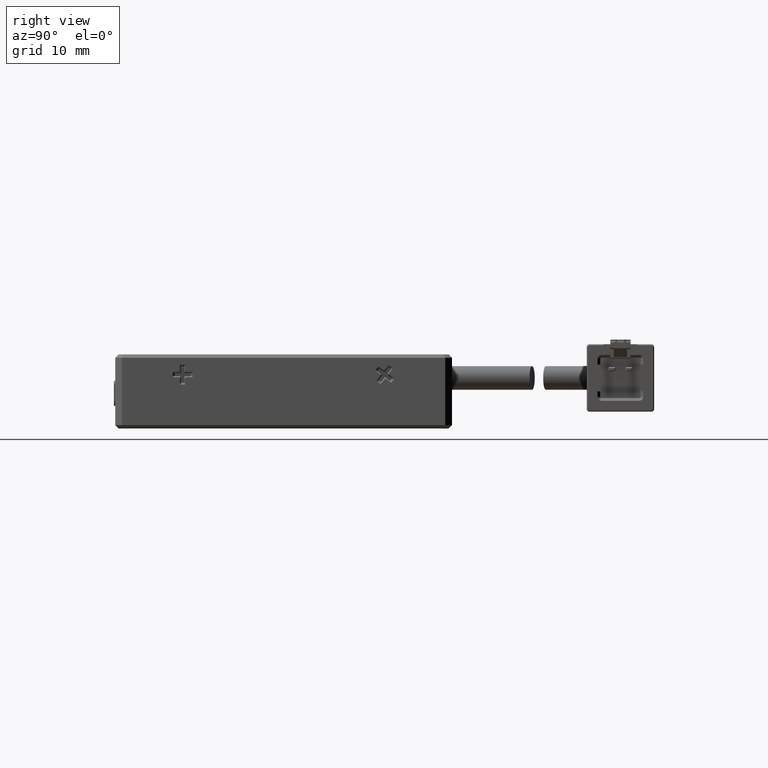
[diagram: clean part render]
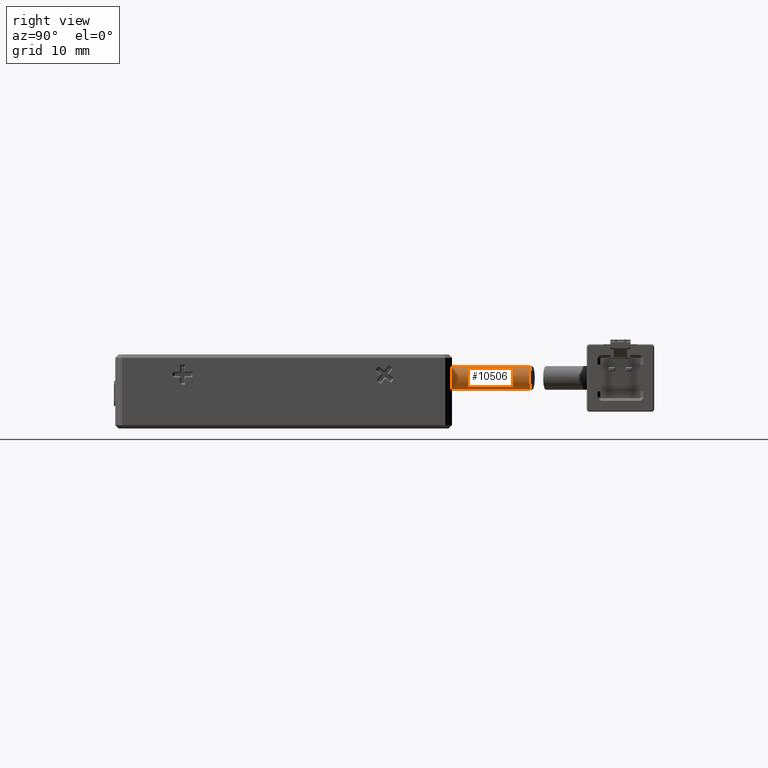
[diagram: same view with one face highlighted and labeled with its STEP entity id]
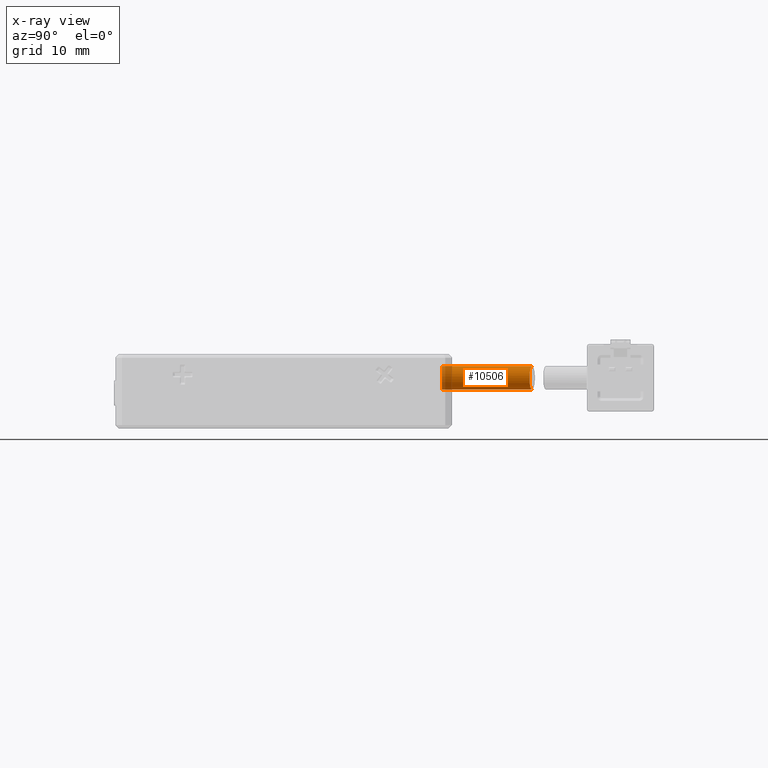
[diagram: x-ray of the same camera — body ghosted, the highlighted face saturated]
A machine part, right view. The second image highlights one B-rep face of the part: STEP entity #10506.
The next image is the same camera in x-ray: the body ghosted, the highlighted face saturated — about 11% of this face is hidden behind the body in this view.
In plain terms, the highlighted cylindrical surface (edge-blend (fillet) strip) has radius 1.75 mm, axis along (0, -1, -0).
Its self-contained STEP definition (entity closure, byte-faithful):
#502 = DIRECTION ( 'NONE',  ( 0.0000000000000000000, -1.000000000000000000, -2.465190328815661900E-032 ) ) ;
#1612 = CARTESIAN_POINT ( 'NONE',  ( 20.78015921837093700, 50.75516468469157200, -2.136713162540999200 ) ) ;
#1760 = CARTESIAN_POINT ( 'NONE',  ( 20.32570792487057100, 50.83784694835013300, 0.1480769993768729600 ) ) ;
#2356 = LINE ( 'NONE', #23267, #35871 ) ;
#4539 = ORIENTED_EDGE ( 'NONE', *, *, #13739, .T. ) ;
#4892 = EDGE_CURVE ( 'NONE', #18140, #32079, #33816, .T. ) ;
#4894 = CARTESIAN_POINT ( 'NONE',  ( 20.96964064431804400, 50.72570103030435700, -1.715388595848945000 ) ) ;
#5036 = CARTESIAN_POINT ( 'NONE',  ( 20.03382196117855700, 50.89871241532083700, 0.3271583989963591200 ) ) ;
#7538 = FACE_OUTER_BOUND ( 'NONE', #35115, .T. ) ;
#7629 = AXIS2_PLACEMENT_3D ( 'NONE', #32669, #16518, #32816 ) ;
#8038 = CARTESIAN_POINT ( 'NONE',  ( 19.49234897223713100, 51.02296432023276700, -2.989062948280361000 ) ) ;
#8190 = CARTESIAN_POINT ( 'NONE',  ( 21.01713950813895700, 50.71930576961738500, -1.136379296568304200 ) ) ;
#8330 = CARTESIAN_POINT ( 'NONE',  ( 19.49404131033333000, 51.02218536997814600, 0.4999999999999780200 ) ) ;
#10506 = ADVANCED_FACE ( 'NONE', ( #7538 ), #38014, .T. ) ;
#10875 = CARTESIAN_POINT ( 'NONE',  ( 19.26702531645571900, 37.71113924050633400, -3.000000000000000900 ) ) ;
#11299 = CARTESIAN_POINT ( 'NONE',  ( 19.82245011417826000, 50.94572949357716900, -2.913411053005033700 ) ) ;
#11449 = CARTESIAN_POINT ( 'NONE',  ( 20.96004607690230900, 50.72746008169804100, -0.7921902363350299400 ) ) ;
#11517 = DIRECTION ( 'NONE',  ( -0.0000000000000000000, 1.000000000000000000, 2.465190328815661900E-032 ) ) ;
#13476 = CARTESIAN_POINT ( 'NONE',  ( 19.26702531645571900, 37.71113924050633400, 0.4999999999999993300 ) ) ;
#13739 = EDGE_CURVE ( 'NONE', #40235, #35351, #2356, .T. ) ;
#13957 = DIRECTION ( 'NONE',  ( 0.0000000000000000000, -1.000000000000000000, -2.465190328815661900E-032 ) ) ;
#14563 = CARTESIAN_POINT ( 'NONE',  ( 20.13324940387489200, 50.87741056161747400, -2.774826525828192100 ) ) ;
#14714 = CARTESIAN_POINT ( 'NONE',  ( 20.83714587498186100, 50.74609655646559500, -0.4685896425531163000 ) ) ;
#15468 = CARTESIAN_POINT ( 'NONE',  ( 19.26702531645571900, 51.07774175742921600, 0.4999999999999994400 ) ) ;
#15803 = B_SPLINE_CURVE_WITH_KNOTS ( 'NONE', 3,
 ( #37114, #33879, #8038, #30740, #11299, #34028, #14563, #37255, #17853, #40532, #21111, #1612, #24387, #4894, #27639, #8190, #30870, #11449, #34175, #14714, #37397, #18000, #40672, #21246, #1760, #24527, #5036, #27775, #8330, #31012 ),
 .UNSPECIFIED., .F., .F.,
 ( 4, 2, 2, 2, 2, 2, 2, 2, 2, 2, 2, 2, 2, 2, 4 ),
 ( 0.005547274227447197800, 0.005892930275886093700, 0.006238586324324989600, 0.006584242372763884600, 0.006929898421202780400, 0.007275554469641676300, 0.007621210518080572200, 0.008312522614958363000, 0.008658178663397259800, 0.009003834711836154700, 0.009349490760275049700, 0.009695146808713946500, 0.01004080285715284300, 0.01038645890559173800, 0.01107777100246952000 ),
 .UNSPECIFIED. ) ;
#16518 = DIRECTION ( 'NONE',  ( 0.0000000000000000000, -1.000000000000000000, -2.465190328815661900E-032 ) ) ;
#16534 = ORIENTED_EDGE ( 'NONE', *, *, #34538, .T. ) ;
#16541 = VECTOR ( 'NONE', #13957, 1000.000000000000000 ) ;
#17853 = CARTESIAN_POINT ( 'NONE',  ( 20.41403862722489700, 50.82055736838403700, -2.576644783378133400 ) ) ;
#18000 = CARTESIAN_POINT ( 'NONE',  ( 20.65274649420385000, 50.77670104991913300, -0.1750737222834601300 ) ) ;
#18140 = VERTEX_POINT ( 'NONE', #36754 ) ;
#19612 = AXIS2_PLACEMENT_3D ( 'NONE', #30945, #11517, #34248 ) ;
#21111 = CARTESIAN_POINT ( 'NONE',  ( 20.65052633751135500, 50.77708591656034500, -2.327849415496723800 ) ) ;
#21246 = CARTESIAN_POINT ( 'NONE',  ( 20.41469144483989600, 50.82042610598090700, 0.07619162637825674400 ) ) ;
#21971 = EDGE_CURVE ( 'NONE', #18140, #40235, #15803, .T. ) ;
#23267 = CARTESIAN_POINT ( 'NONE',  ( 19.26702531645571900, 60.21113924050633400, 0.4999999999999993300 ) ) ;
#24193 = CIRCLE ( 'NONE', #19612, 1.750000000000000200 ) ;
#24387 = CARTESIAN_POINT ( 'NONE',  ( 20.83594519766508700, 50.74628662870970400, -2.033732595532760100 ) ) ;
#24527 = CARTESIAN_POINT ( 'NONE',  ( 20.13589743422559800, 50.87685123163051800, 0.2733152676018214000 ) ) ;
#25185 = ORIENTED_EDGE ( 'NONE', *, *, #4892, .F. ) ;
#27639 = CARTESIAN_POINT ( 'NONE',  ( 21.01679432190782000, 50.71935422523217300, -1.482477569405537700 ) ) ;
#27775 = CARTESIAN_POINT ( 'NONE',  ( 19.71830821952809400, 50.96888768041493000, 0.4560089627332115600 ) ) ;
#30740 = CARTESIAN_POINT ( 'NONE',  ( 19.71277661589304100, 50.97096378034417800, -2.946000137672817300 ) ) ;
#30870 = CARTESIAN_POINT ( 'NONE',  ( 21.00560747033364400, 50.72090487140868500, -1.019259519747140100 ) ) ;
#30945 = CARTESIAN_POINT ( 'NONE',  ( 19.26702531645571900, 37.71113924050633400, -1.250000000000000700 ) ) ;
#31012 = CARTESIAN_POINT ( 'NONE',  ( 19.26702531645571900, 51.07774175742921600, 0.4999999999999994400 ) ) ;
#32079 = VERTEX_POINT ( 'NONE', #10875 ) ;
#32669 = CARTESIAN_POINT ( 'NONE',  ( 19.26702531645571900, 60.21113924050633400, -1.250000000000000700 ) ) ;
#32816 = DIRECTION ( 'NONE',  ( 0.0000000000000000000, 0.0000000000000000000, -1.000000000000000000 ) ) ;
#33397 = CARTESIAN_POINT ( 'NONE',  ( 19.26702531645571900, 60.21113924050633400, -3.000000000000000900 ) ) ;
#33816 = LINE ( 'NONE', #33397, #16541 ) ;
#33879 = CARTESIAN_POINT ( 'NONE',  ( 19.38053986730336200, 51.04996195980128000, -3.000000000000002200 ) ) ;
#34028 = CARTESIAN_POINT ( 'NONE',  ( 20.03306261885053300, 50.89887672037725300, -2.827536018138449200 ) ) ;
#34175 = CARTESIAN_POINT ( 'NONE',  ( 20.92633827740078400, 50.73237380605022700, -0.6820552732251011800 ) ) ;
#34248 = DIRECTION ( 'NONE',  ( 0.0000000000000000000, 0.0000000000000000000, -1.000000000000000000 ) ) ;
#34538 = EDGE_CURVE ( 'NONE', #35351, #32079, #24193, .T. ) ;
#35115 = EDGE_LOOP ( 'NONE', ( #35161, #4539, #16534, #25185 ) ) ;
#35161 = ORIENTED_EDGE ( 'NONE', *, *, #21971, .T. ) ;
#35351 = VERTEX_POINT ( 'NONE', #13476 ) ;
#35871 = VECTOR ( 'NONE', #502, 1000.000000000000000 ) ;
#36754 = CARTESIAN_POINT ( 'NONE',  ( 19.26702531645571900, 51.07774175742920900, -3.000000000000000900 ) ) ;
#37114 = CARTESIAN_POINT ( 'NONE',  ( 19.26702531645571900, 51.07774175742920900, -3.000000000000000900 ) ) ;
#37255 = CARTESIAN_POINT ( 'NONE',  ( 20.32336135608358800, 50.83831435571954700, -2.649855090671090700 ) ) ;
#37397 = CARTESIAN_POINT ( 'NONE',  ( 20.78134377206711000, 50.75497405966713400, -0.3653931381794813200 ) ) ;
#38014 = CYLINDRICAL_SURFACE ( 'NONE', #7629, 1.750000000000000200 ) ;
#40235 = VERTEX_POINT ( 'NONE', #15468 ) ;
#40532 = CARTESIAN_POINT ( 'NONE',  ( 20.57721167513895500, 50.79003583566867500, -2.415777689727524300 ) ) ;
#40672 = CARTESIAN_POINT ( 'NONE',  ( 20.57950094624722600, 50.78961694495765000, -0.08667309266933405400 ) ) ;